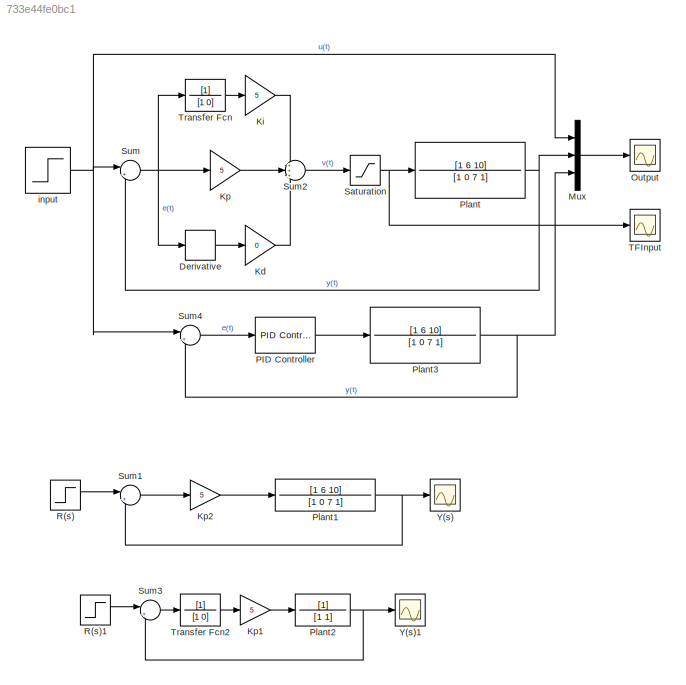
MODEL slx_733e44fe0bc1
KIND model
CONFIG AbsTol = auto
CONFIG EnableMultiTasking = off
CONFIG FixedStep = auto
CONFIG MaxStep = auto
CONFIG MinStep = auto
CONFIG RelTol = 1e-3
CONFIG SampleTimeConstraint = Unconstrained
CONFIG SolverName = VariableStepAuto
CONFIG StartTime = 0.0
CONFIG StopTime = 20
BLOCK [Derivative] Derivative
BLOCK [Gain] Kd
  Gain = 0
BLOCK [Gain] Ki
  Gain = 5
BLOCK [Gain] Kp
  Gain = 5
BLOCK [Gain] Kp1
  Gain = 5
BLOCK [Gain] Kp2
  Gain = 5
BLOCK [Mux] Mux
  DisplayOption = bar
  Inputs = 3
BLOCK [Scope] Output
  Floating = off
  NumInputPorts = 1
  ScopeSpecificationString = Simulink.scopes.TimeScopeBlockCfg('CurrentConfiguration', extmgr.ConfigurationSet(extmgr.Configuration('Core','General UI',true),extmgr.Configuration('Core','Source UI',true),extmgr.Configuration('Sources','WiredSimulink',true),extmgr.Configuration('Visuals','Time Domain',true,'SerializedDisplays',{struct('MinYLimReal','-0.88734','MaxYLimReal','7.98605','YLabelReal','','MinYLimMag','0.00000','MaxY...<+1439ch>
BLOCK [Reference] PID Controller  REF=slpidlib/PID Controller
  LibrarySourceBlock = simulink/Continuous/PID Controller
  SourceBlock = slpidlib/PID Controller
  SourceType = PID 1dof
BLOCK [TransferFcn] Plant
  Denominator = [1 0 7 1]
  Numerator = [1 6 10]
BLOCK [TransferFcn] Plant1
  Denominator = [1 0 7 1]
  Numerator = [1 6 10]
BLOCK [TransferFcn] Plant2
  Denominator = [1 1]
BLOCK [TransferFcn] Plant3
  Denominator = [1 0 7 1]
  Numerator = [1 6 10]
BLOCK [Step] R(s)
  SampleTime = 0
BLOCK [Step] R(s)1
  SampleTime = 0
BLOCK [Saturate] Saturation
  LowerLimit = -2
  UpperLimit = 2
BLOCK [Sum] Sum
  Inputs = |+-
BLOCK [Sum] Sum1
  Inputs = |+-
BLOCK [Sum] Sum2
  Inputs = +++
BLOCK [Sum] Sum3
  Inputs = |+-
BLOCK [Sum] Sum4
  Inputs = |+-
BLOCK [Scope] TFInput
  Floating = off
  NumInputPorts = 1
  ScopeSpecificationString = Simulink.scopes.TimeScopeBlockCfg('CurrentConfiguration', extmgr.ConfigurationSet(extmgr.Configuration('Core','General UI',true),extmgr.Configuration('Core','Source UI',true),extmgr.Configuration('Sources','WiredSimulink',true,'DataLoggingVariableName','ScopeData3'),extmgr.Configuration('Visuals','Time Domain',true,'SerializedDisplays',{struct('MinYLimReal','-0.9536','MaxYLimReal','2.27949','YLabe...<+1469ch>
BLOCK [TransferFcn] Transfer Fcn
  Denominator = [1 0]
BLOCK [TransferFcn] Transfer Fcn2
  Denominator = [1 0]
BLOCK [Scope] Y(s)
  Floating = off
  NumInputPorts = 1
  ScopeSpecificationString = Simulink.scopes.TimeScopeBlockCfg('CurrentConfiguration', extmgr.ConfigurationSet(extmgr.Configuration('Core','General UI',true),extmgr.Configuration('Core','Source UI',true),extmgr.Configuration('Sources','WiredSimulink',true,'DataLoggingVariableName','ScopeData1'),extmgr.Configuration('Visuals','Time Domain',true,'SerializedDisplays',{struct('MinYLimReal','-0.15728','MaxYLimReal','1.41553','YLab...<+1395ch>
BLOCK [Scope] Y(s)1
  Floating = off
  NumInputPorts = 1
  ScopeSpecificationString = Simulink.scopes.TimeScopeBlockCfg('CurrentConfiguration', extmgr.ConfigurationSet(extmgr.Configuration('Core','General UI',true),extmgr.Configuration('Core','Source UI',true),extmgr.Configuration('Sources','WiredSimulink',true,'DataLoggingVariableName','ScopeData2'),extmgr.Configuration('Visuals','Time Domain',true,'SerializedDisplays',{struct('MinYLimReal','-0.18535','MaxYLimReal','1.66817','YLab...<+1395ch>
BLOCK [Step] input
  After = 5
  SampleTime = 0
LINE Derivative:1 -> Kd:1
LINE Kd:1 -> Sum2:3
LINE Ki:1 -> Sum2:1
LINE Kp1:1 -> Plant2:1
LINE Kp2:1 -> Plant1:1
LINE Kp:1 -> Sum2:2
LINE Mux:1 -> Output:1
LINE PID Controller:1 -> Plant3:1
NET Plant1:1 -> Sum1:2, Y(s):1
NET Plant2:1 -> Sum3:2, Y(s)1:1
NET Plant3:1 -> Mux:3, Sum4:2
NET Plant:1 -> Mux:2, Sum:2
LINE R(s)1:1 -> Sum3:1
LINE R(s):1 -> Sum1:1
NET Saturation:1 -> Plant:1, TFInput:1
LINE Sum1:1 -> Kp2:1
LINE Sum2:1 -> Saturation:1
LINE Sum3:1 -> Transfer Fcn2:1
LINE Sum4:1 -> PID Controller:1
NET Sum:1 -> Derivative:1, Kp:1, Transfer Fcn:1
LINE Transfer Fcn2:1 -> Kp1:1
LINE Transfer Fcn:1 -> Ki:1
NET input:1 -> Mux:1, Sum4:1, Sum:1
note: NET lines group one-source signal fan-out (src -> all destinations, sorted); 1:1 wires keep LINE
